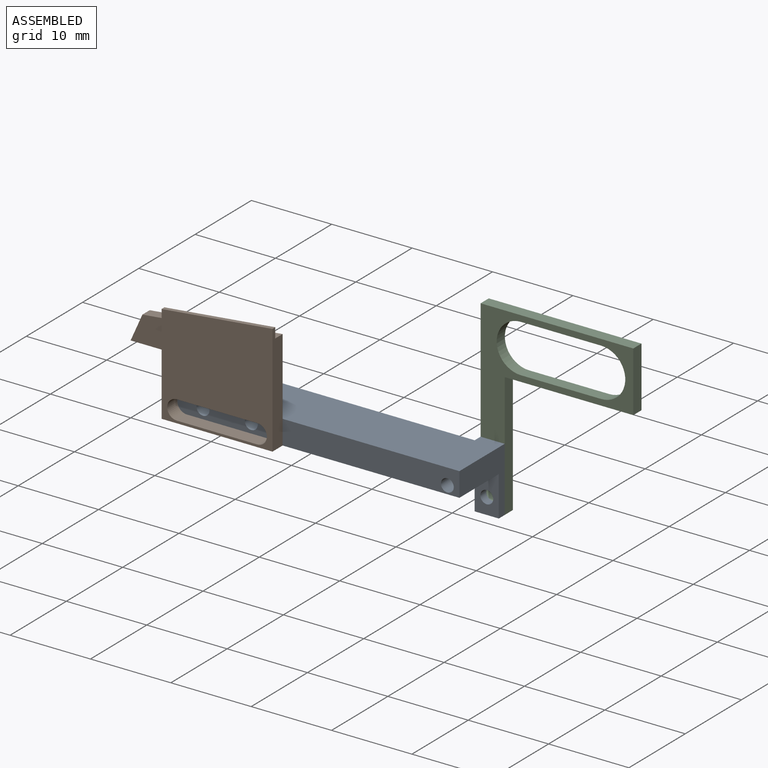
[diagram: assembled view]
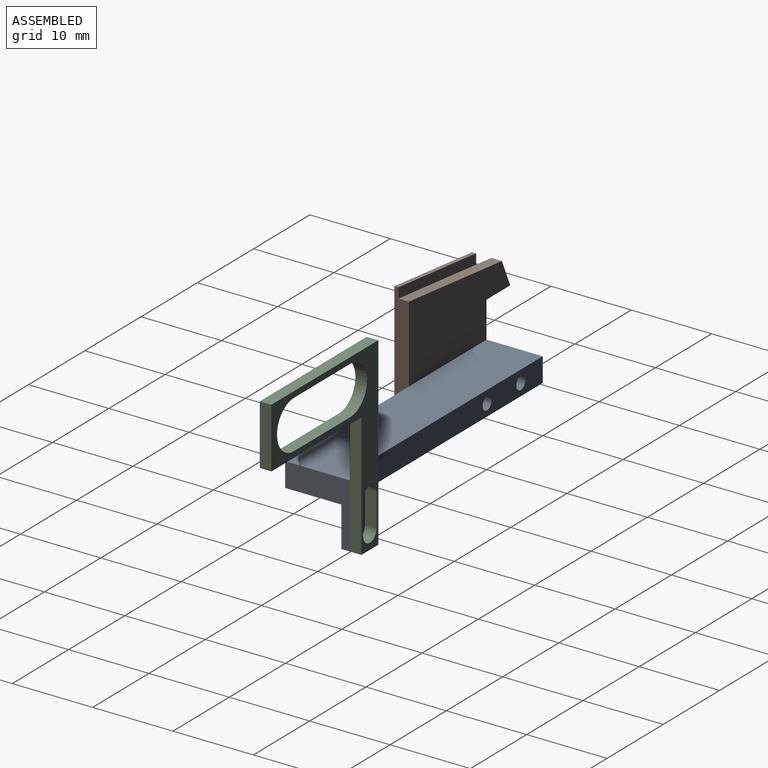
[diagram: assembled view, second angle]
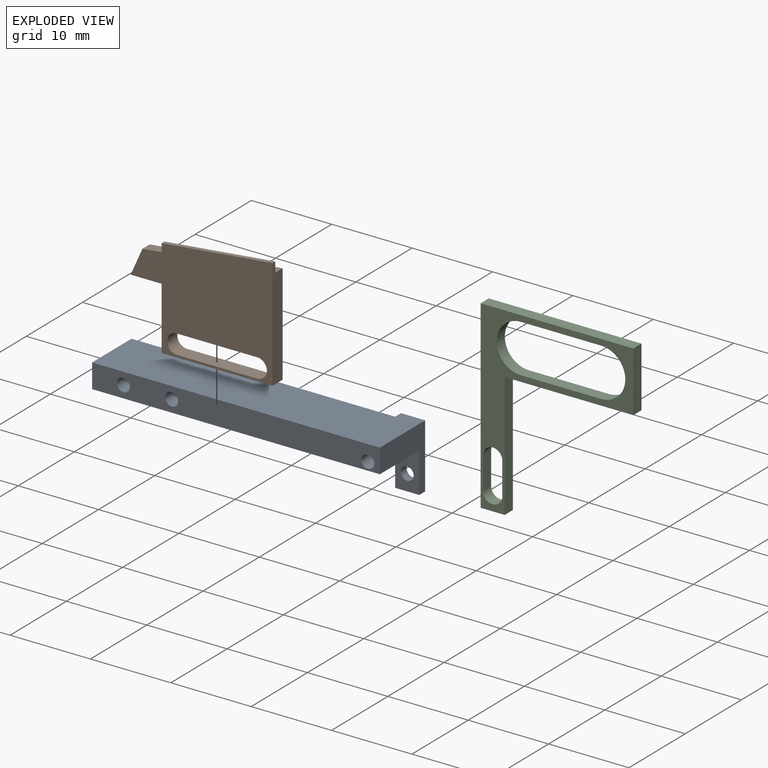
[diagram: exploded view]
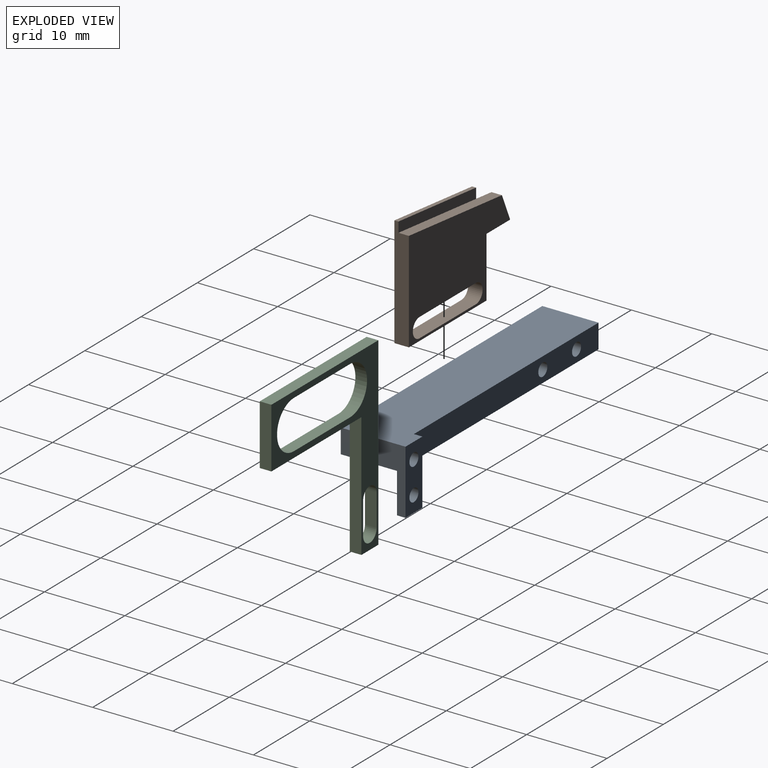
[diagram: exploded view, second angle]
ASSEMBLY  parts=3 mates=6
PART A: 14 faces, bbox 35.8x8.1x8 mm
  f0: plane 5x3mm, normal (0,-1,0), area 13mm2, adj f2,f3,f8,f12,f13
  f1: plane 7x3mm, normal (-1,0,0), area 21mm2, adj f3,f4,f5,f6
  f2: plane 8.05x8mm, normal (1,0,0), area 29.4mm2, adj f0,f3,f4,f6,f7,f12
  f3: plane 35.8x7mm, normal (0,0,-1), area 250.6mm2, adj f0,f1,f2,f5,f6
  f4: plane 35.8x8.05mm, normal (0,0,1), area 253.8mm2, adj f1,f2,f5,f6,f7,f8
  f5: plane 32.8x3mm, normal (0,1,0), area 94.4mm2, adj f1,f3,f4,f8,f10,f11
  f6: plane 35.8x3mm, normal (0,-1,0), area 101.4mm2, adj f1,f2,f3,f4,f9,f10,f11
  f7: plane 8x3mm, normal (0,1,0), area 20mm2, adj f2,f4,f8,f9,f12,f13
  f8: plane 8x1.05mm, normal (-1,0,0), area 8.4mm2, adj f0,f4,f5,f7,f12
  f9: cylinder r=0.8mm len=8.05mm, axis (0,1,0), area 40.5mm2, adj f6,f7
  f10: cylinder r=0.8mm len=7mm, axis (0,-1,0), area 35.2mm2, adj f5,f6
  f11: cylinder r=0.8mm len=7mm, axis (0,-1,0), area 35.2mm2, adj f5,f6
  f12: plane 3x1.05mm, normal (0,0,-1), area 3.2mm2, adj f0,f2,f7,f8
  f13: cylinder r=0.8mm len=1.6mm, axis (0,1,0), area 5.3mm2, adj f0,f7
PART B: 15 faces, bbox 18x1.8x13.8 mm
  f0: plane 13.8x1.8mm, normal (1,0,0), area 23.2mm2, adj f1,f5,f6,f7,f9,f10
  f1: plane 13.8x1.8mm, normal (0,0,-1), area 24.8mm2, adj f0,f6,f8,f9
  f2: plane 4.2x3.59mm, normal (0,-1,0), area 11.8mm2, adj f3,f4,f5,f8
  f3: plane 3.3x1.47mm, normal (-0.91,0,0.41), area 4.7mm2, adj f2,f4,f5,f6
  f4: plane 4.2x1.3mm, normal (0,0,-1), area 5.5mm2, adj f2,f3,f6,f8
  f5: plane 16.53x1.74mm, normal (-0.1,0,0.99), area 21.6mm2, adj f0,f2,f3,f6,f10
  f6: plane 18x12.54mm, normal (0,1,0), area 146.3mm2, adj f0,f1,f3,f4,f5,f8,f11,f12
  f7: plane 13.8x1.45mm, normal (-0.1,0,0.99), area 6.9mm2, adj f0,f8,f9,f10
  f8: plane 12.35x1.8mm, normal (-1,0,0), area 15.9mm2, adj f1,f2,f4,f6,f7,f9,f10
  f9: plane 13.8x13.8mm, normal (0,-1,0), area 151.9mm2, adj f0,f1,f7,f8,f11,f12,f13,f14
  f10: plane 13.8x2.71mm, normal (0,1,0), area 17.4mm2, adj f0,f5,f7,f8
  f11: cylinder r=1.2mm len=2.4mm, axis (0,-1,0), area 6.8mm2, adj f6,f9,f12,f14
  f12: plane 10x1.8mm, normal (0,0,1), area 18mm2, adj f6,f9,f11,f13
  f13: cylinder r=1.2mm len=2.4mm, axis (0,-1,0), area 6.8mm2, adj f6,f9,f12,f14
  f14: plane 10x1.8mm, normal (0,0,-1), area 18mm2, adj f6,f9,f11,f13
PART C: 16 faces, bbox 19x1.5x23 mm
  f0: plane 23x19mm, normal (0,1,0), area 86.6mm2, adj f2,f3,f4,f5,f6,f7,f8,f9
  f1: plane 23x19mm, normal (0,-1,0), area 86.6mm2, adj f2,f3,f4,f5,f6,f7,f8,f9
  f2: plane 15.5x1.45mm, normal (1,0,0), area 22.5mm2, adj f0,f1,f4,f11
  f3: plane 19x1.45mm, normal (0,0,1), area 27.6mm2, adj f0,f1,f5,f10
  f4: plane 16x1.45mm, normal (0,0,-1), area 23.2mm2, adj f0,f1,f2,f5
  f5: plane 7.5x1.45mm, normal (1,0,0), area 10.9mm2, adj f0,f1,f3,f4
  f6: cylinder r=3mm len=6mm, axis (0,-1,0), area 13.7mm2, adj f0,f1,f7,f9
  f7: plane 10x1.45mm, normal (0,0,1), area 14.5mm2, adj f0,f1,f6,f8
  f8: cylinder r=3mm len=6mm, axis (0,-1,0), area 13.7mm2, adj f0,f1,f7,f9
  f9: plane 10x1.45mm, normal (0,0,-1), area 14.5mm2, adj f0,f1,f6,f8
  f10: plane 23x1.45mm, normal (-1,0,0), area 33.4mm2, adj f0,f1,f3,f11
  f11: plane 3x1.45mm, normal (0,0,-1), area 4.3mm2, adj f0,f1,f2,f10
  f12: cylinder r=1.2mm len=2.4mm, axis (0,-1,0), area 5.5mm2, adj f0,f1,f13,f15
  f13: plane 4x1.45mm, normal (1,0,0), area 5.8mm2, adj f0,f1,f12,f14
  f14: cylinder r=1.2mm len=2.4mm, axis (0,-1,0), area 5.5mm2, adj f0,f1,f13,f15
  f15: plane 4x1.45mm, normal (-1,0,0), area 5.8mm2, adj f0,f1,f12,f14
PLACE A t=(-4.2,-7,7.5)mm
PLACE B t=(-4.2,-7,7.5)mm
PLACE C t=(-9.2,-6.6,7.5)mm
MATE planar A.f2 <-> C.f2  axis (1,0,0) through (35.8,-2.35,0.79)mm
MATE planar C.f1 <-> A.f7  axis (0,-1,0) through (32.8,1.05,6.5)mm
MATE planar C.f11 <-> A.f12  axis (0,0,-1) through (34.3,1.77,-5)mm
MATE planar B.f1 <-> A.f3  axis (0,0,-1) through (6.9,-8.8,0)mm
MATE planar A.f6 <-> B.f6  axis (0,-1,0) through (18.01,-7,1.51)mm
MATE planar B.f8 <-> A.f1  axis (-1,0,0) through (0,-8,4.69)mm
